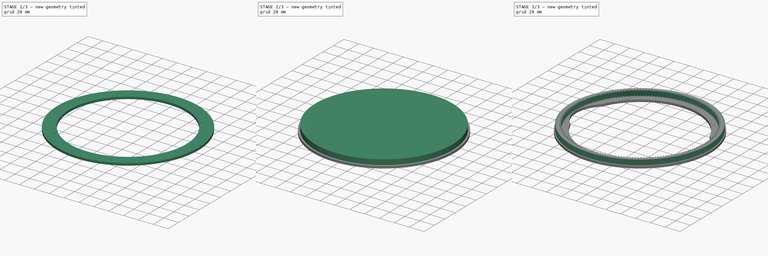
[diagram: build sequence overview — one tinted view per stage of 3, left to right]
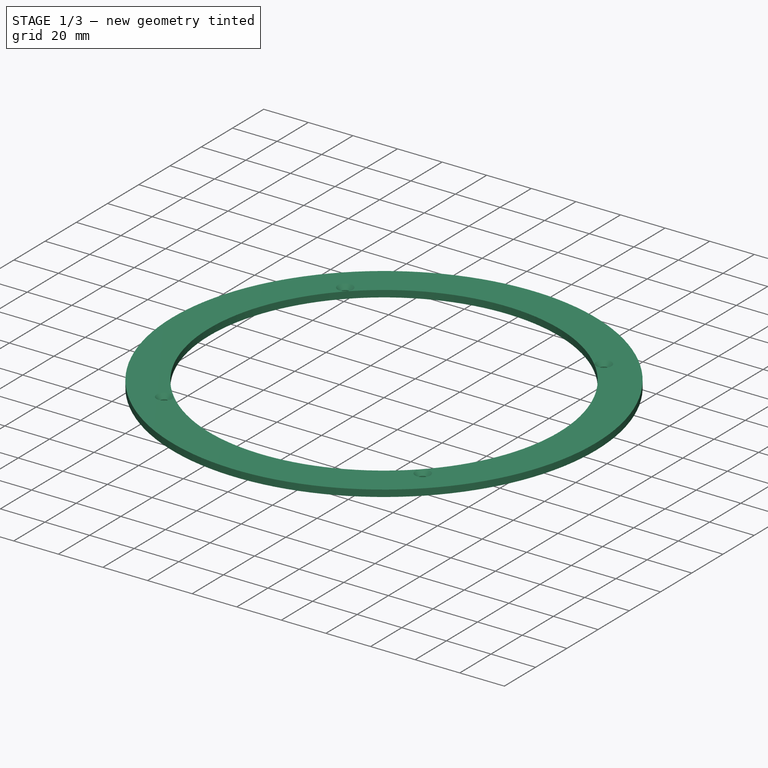
[diagram: stage 1 of 3 — iso view after this stage's code; geometry added in this stage tinted green]
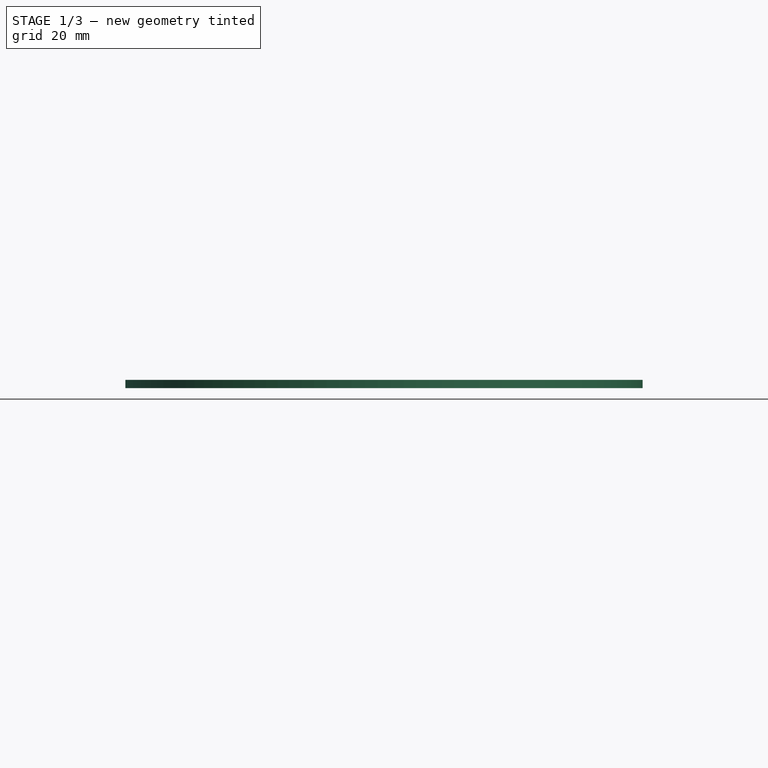
[diagram: stage 1 of 3 — front view after this stage's code; geometry added in this stage tinted green]
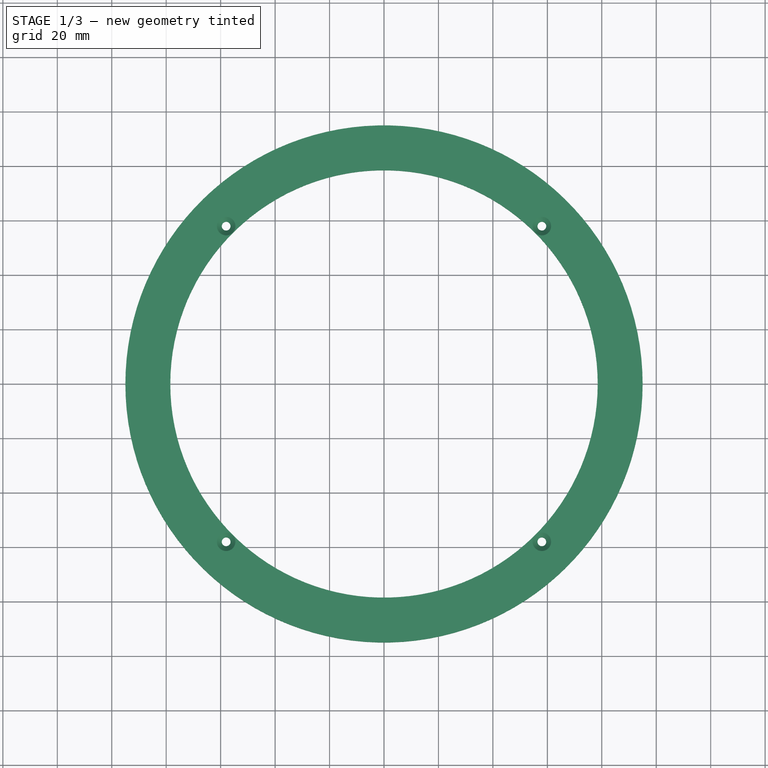
[diagram: stage 1 of 3 — top view after this stage's code; geometry added in this stage tinted green]
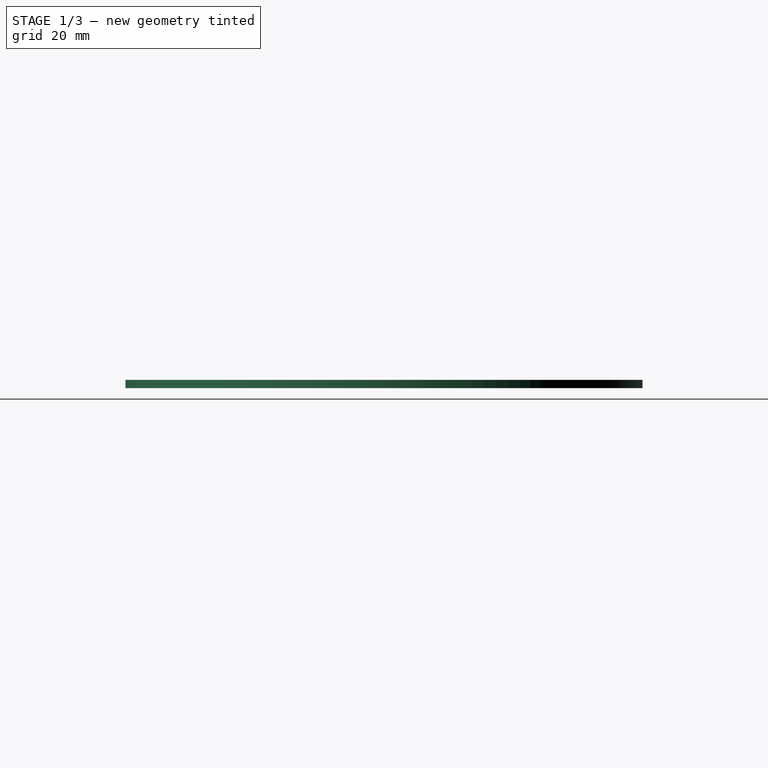
[diagram: stage 1 of 3 — right view after this stage's code; geometry added in this stage tinted green]
FCSTD DOCUMENT  (FreeCAD 0.19R24276 (Git))
Label: Out_gear_t176_w7_d185_GT2_t295_osnovanie_v2
License: All rights reserved
LicenseURL: http://en.wikipedia.org/wiki/All_rights_reserved
objects: App::FeaturePython×4, Sketcher::SketchObject×3, PartDesign::Body×2, PartDesign::Pocket×2, PartDesign::FeaturePython×1, Part::Cylinder×1, Part::Cut×1, Part::FeaturePython×1, PartDesign::Pad×1, PartDesign::Chamfer×1
note: 17 computed .brp shape members not serialized (recipe doc carries the construction recipe); baked Part::Feature solids carry a one-line shape summary decoded from their .brp

FEATURE [App::FeaturePython] planeCoincident_001  label="planeCoincident_001__GT2_t295_d185_001"  # a2plus constraint (typed FeaturePython)
  Object1 = Cut
  Object2 = b_GT2_t295_d185_001_
  ParentTreeObject = -> Cut
  SubElement1 = Face2
  SubElement2 = Face5
  Suppressed = false
  Type = plane
  directionConstraint = 0
  offset = 0
FEATURE [App::FeaturePython] planeCoincident_001_mirror  label="planeCoincident_001__Cut"  # a2plus constraint (typed FeaturePython)
  Object1 = Cut
  Object2 = b_GT2_t295_d185_001_
  ParentTreeObject = -> b_GT2_t295_d185_001_
  SubElement1 = Face2
  SubElement2 = Face5
  Suppressed = false
  Type = plane
  directionConstraint = 0
  offset = 0
FEATURE [App::FeaturePython] axisCoincident_001  label="axisCoincident_001__Cut"  # a2plus constraint (typed FeaturePython)
  Object1 = b_GT2_t295_d185_001_
  Object2 = Cut
  ParentTreeObject = -> b_GT2_t295_d185_001_
  SubElement1 = Face1773
  SubElement2 = Face1
  Suppressed = false
  Type = axial
  directionConstraint = 1
  lockRotation = false
FEATURE [App::FeaturePython] axisCoincident_001_mirror  label="axisCoincident_001__GT2_t295_d185_001"  # a2plus constraint (typed FeaturePython)
  Object1 = b_GT2_t295_d185_001_
  Object2 = Cut
  ParentTreeObject = -> Cut
  SubElement1 = Face1773
  SubElement2 = Face1
  Suppressed = false
  Type = axial
  directionConstraint = 1
  lockRotation = false
FEATURE [Sketcher::SketchObject] Sketch
  FullyConstrained = true
  MapMode = 5
  Support = -> [XY_Plane001]
  sketch-geometry (2):
    g0: Circle CenterX=0 CenterY=0 CenterZ=0 NormalX=0 NormalY=0 NormalZ=1 AngleXU=0 Radius=95
    g1: Circle CenterX=0 CenterY=0 CenterZ=0 NormalX=0 NormalY=0 NormalZ=1 AngleXU=0 Radius=78.5
  constraints (4):
    c: Coincident(g0,g-1)
    c: Diameter(g0) = 190
    c: Coincident(g1,g0)
    c: Diameter(g1) = 157
FEATURE [PartDesign::Pad] Pad
  Direction = (1,1,1)
  Length = 3
  Length2 = 100
  Profile = -> Sketch
  Reversed = true
  Type = 0
FEATURE [Sketcher::SketchObject] Sketch001
  FullyConstrained = true
  MapMode = 5
  Placement = pos=(0,0,-3) rot=(1,0,0;3.14159rad)
  Support = -> [Pad]
  sketch-geometry (13):
    g0: Circle CenterX=0 CenterY=82 CenterZ=0 NormalX=0 NormalY=0 NormalZ=1 AngleXU=0 Radius=1.6
    g1: Circle CenterX=82 CenterY=0 CenterZ=0 NormalX=0 NormalY=0 NormalZ=1 AngleXU=0 Radius=1.6
    g2: Circle CenterX=-82 CenterY=0 CenterZ=0 NormalX=0 NormalY=0 NormalZ=1 AngleXU=0 Radius=1.6
    g3: Circle CenterX=0 CenterY=-82 CenterZ=0 NormalX=0 NormalY=0 NormalZ=1 AngleXU=0 Radius=1.6
    g4: Circle CenterX=0 CenterY=0 CenterZ=0 NormalX=0 NormalY=0 NormalZ=1 AngleXU=0 Radius=82
    g5: LineSegment StartX=0 StartY=0 StartZ=0 EndX=57.9828 EndY=57.9828 EndZ=0
    g6: LineSegment StartX=0 StartY=0 StartZ=0 EndX=-57.9828 EndY=57.9828 EndZ=0
    g7: LineSegment StartX=0 StartY=0 StartZ=0 EndX=-57.9828 EndY=-57.9828 EndZ=0
    g8: LineSegment StartX=0 StartY=0 StartZ=0 EndX=57.9828 EndY=-57.9828 EndZ=0
    g9: Circle CenterX=57.9828 CenterY=57.9828 CenterZ=0 NormalX=0 NormalY=0 NormalZ=1 AngleXU=0 Radius=1.6
    g10: Circle CenterX=-57.9828 CenterY=57.9828 CenterZ=0 NormalX=0 NormalY=0 NormalZ=1 AngleXU=0 Radius=1.6
    g11: Circle CenterX=-57.9828 CenterY=-57.9828 CenterZ=0 NormalX=0 NormalY=0 NormalZ=1 AngleXU=0 Radius=1.6
    g12: Circle CenterX=57.9828 CenterY=-57.9828 CenterZ=0 NormalX=0 NormalY=0 NormalZ=1 AngleXU=0 Radius=1.6
  constraints (34):
    c: PointOnObject(g0,g-2)
    c: Diameter(g0) = 3.2
    c: DistanceY(g-1,g0) = 82
    c: PointOnObject(g1,g-1)
    c: Equal(g0,g1)
    c: DistanceX(g-1,g1) = 82
    c: PointOnObject(g2,g-1)
    c: Equal(g2,g0)
    c: DistanceX(g2,g-1) = 82
    c: PointOnObject(g3,g-2)
    c: Equal(g0,g3)
    c: DistanceY(g3,g-1) = 82
    c: Coincident(g4,g-1)
    c: Radius(g4) = 82
    c: Coincident(g5,g4)
    c: Coincident(g6,g4)
    c: Coincident(g7,g4)
    c: Coincident(g8,g4)
    c: Parallel(g6,g8)
    c: Parallel(g5,g7)
    c: Angle(g-1,g5) = 0.785398
    c: Angle(g5,g6) = 1.5708
    c: PointOnObject(g5,g4)
    c: PointOnObject(g8,g4)
    c: PointOnObject(g7,g4)
    c: PointOnObject(g6,g4)
    c: Coincident(g9,g5)
    c: Coincident(g10,g6)
    c: Coincident(g11,g7)
    c: Coincident(g12,g8)
    c: Diameter(g9) = 3.2
    c: Equal(g9,g10)
    c: Equal(g9,g11)
    c: Equal(g9,g12)
FEATURE [PartDesign::Pocket] Pocket
  BaseFeature = -> Pad
  Length = 5
  Length2 = 100
  Profile = -> Sketch001
  Type = 1
FEATURE [PartDesign::Chamfer] Chamfer
  Angle = 45
  Base = -> Pocket [Edge6,Vertex3,Edge4,Edge8,Edge5]
  BaseFeature = -> Pocket
  ChamferType = 0
  FlipDirection = false
  Size = 1.8
  Size2 = 1
  SupportTransform = false
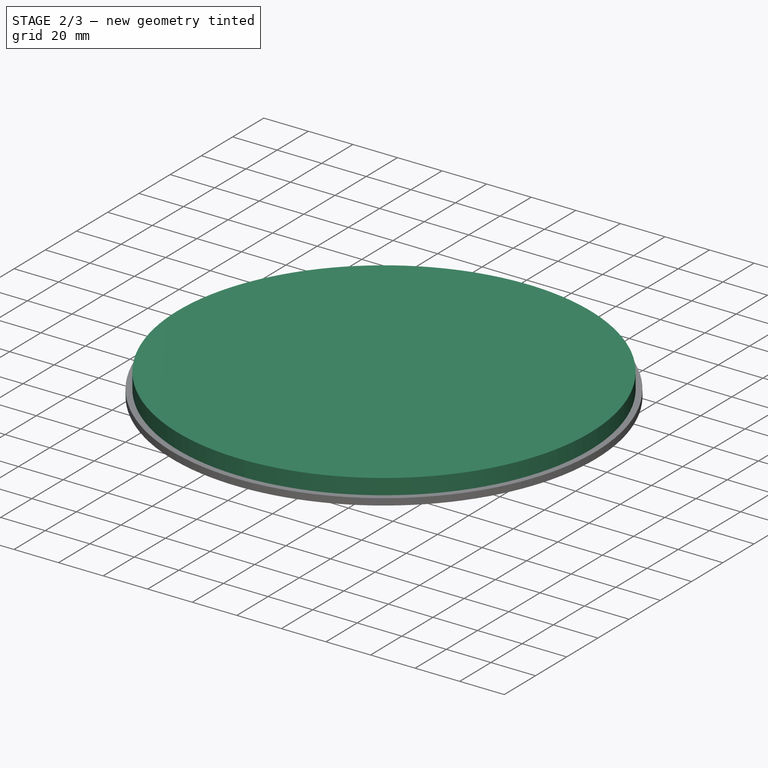
[diagram: stage 2 of 3 — iso view after this stage's code; geometry added in this stage tinted green]
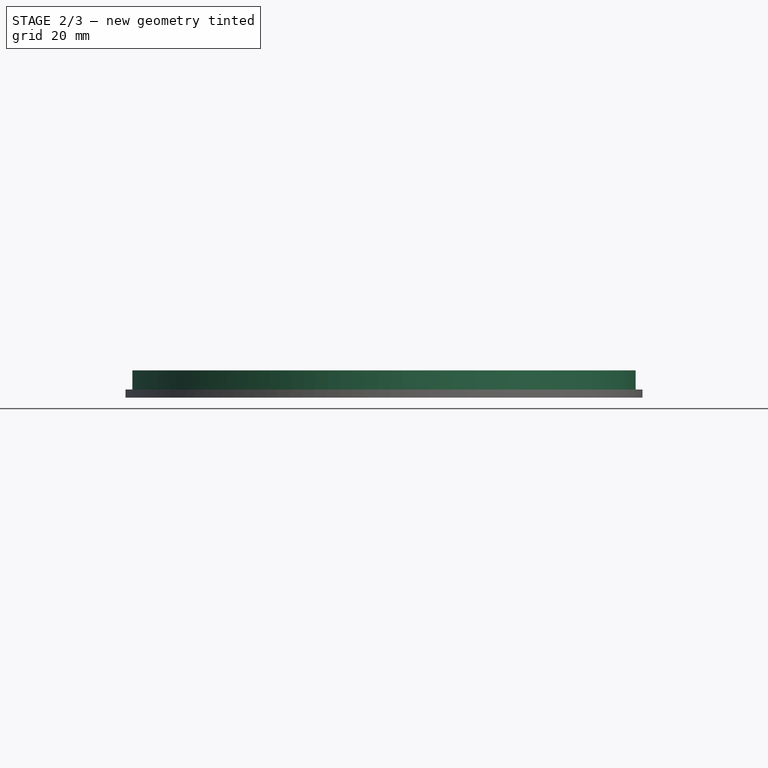
[diagram: stage 2 of 3 — front view after this stage's code; geometry added in this stage tinted green]
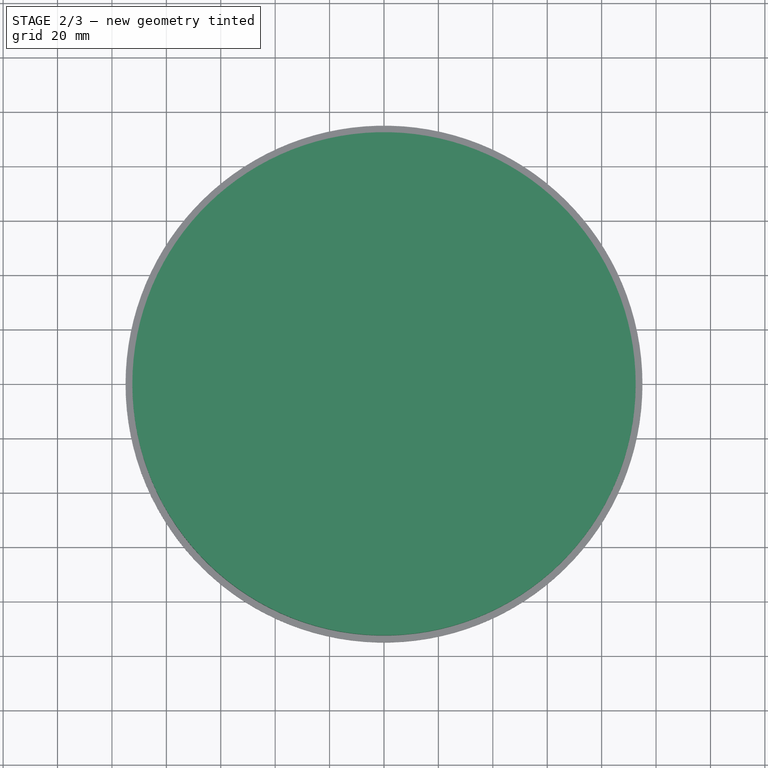
[diagram: stage 2 of 3 — top view after this stage's code; geometry added in this stage tinted green]
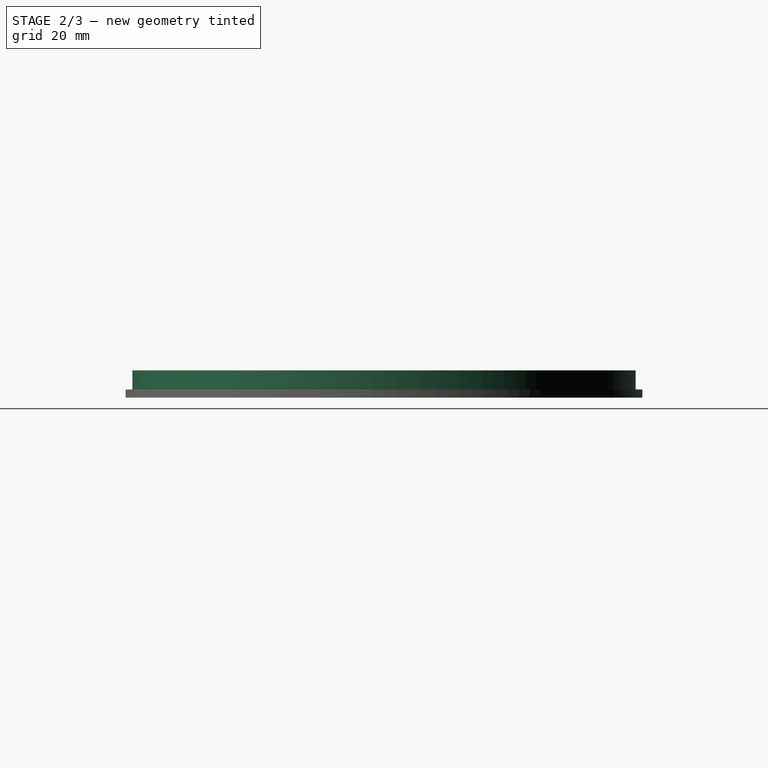
[diagram: stage 2 of 3 — right view after this stage's code; geometry added in this stage tinted green]
FEATURE [PartDesign::Body] Body
  Group = -> [involutegear001]
  Origin = -> Origin
  Tip = -> involutegear001
FEATURE [Part::Cylinder] Cylinder  label="Цилиндр"
  Angle = 360
  AttacherType = Attacher::AttachEngine3D
  Height = 7
  Radius = 92.5
FEATURE [Sketcher::SketchObject] Sketch002
  FullyConstrained = true
  MapMode = 5
  Support = -> [XY_Plane001]
  sketch-geometry (2):
    g0: Circle CenterX=-45 CenterY=0 CenterZ=0 NormalX=0 NormalY=0 NormalZ=1 AngleXU=0 Radius=41
    g1: Circle CenterX=45 CenterY=0 CenterZ=0 NormalX=0 NormalY=0 NormalZ=1 AngleXU=0 Radius=41
  constraints (6):
    c: PointOnObject(g0,g-1)
    c: PointOnObject(g1,g-1)
    c: Diameter(g0) = 82
    c: DistanceX(g0,g-1) = 45
    c: Equal(g0,g1)
    c: DistanceX(g-1,g1) = 45
FEATURE [PartDesign::Pocket] Pocket001
  BaseFeature = -> Chamfer
  Length = 5
  Length2 = 100
  Profile = -> Sketch002
  Type = 1
FEATURE [PartDesign::Body] Body001
  Group = -> [Sketch,Pad,Sketch001,Pocket,Chamfer,Sketch002,Pocket001]
  Origin = -> Origin001
  Tip = -> Pocket001
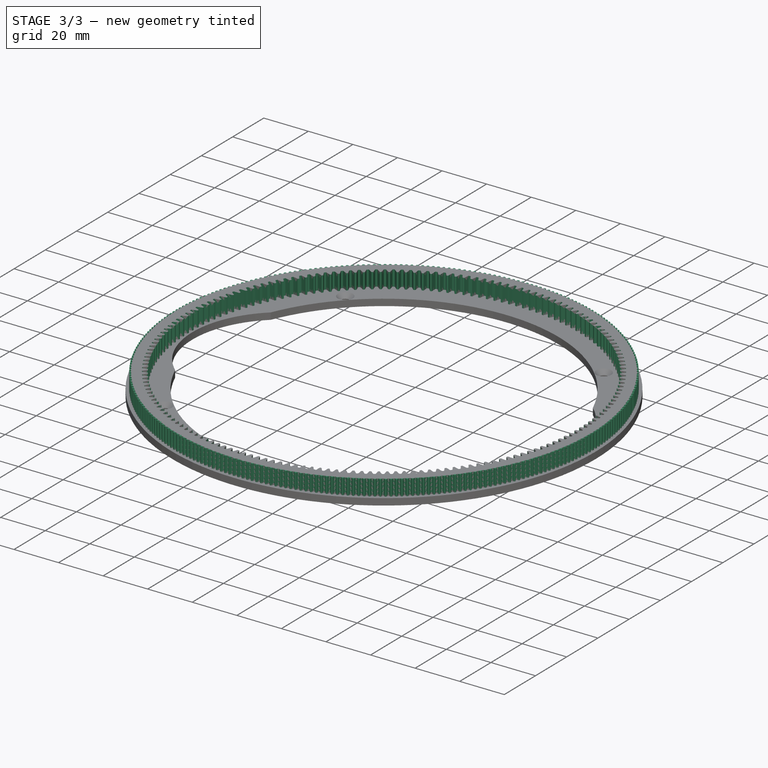
[diagram: stage 3 of 3 — iso view after this stage's code; geometry added in this stage tinted green]
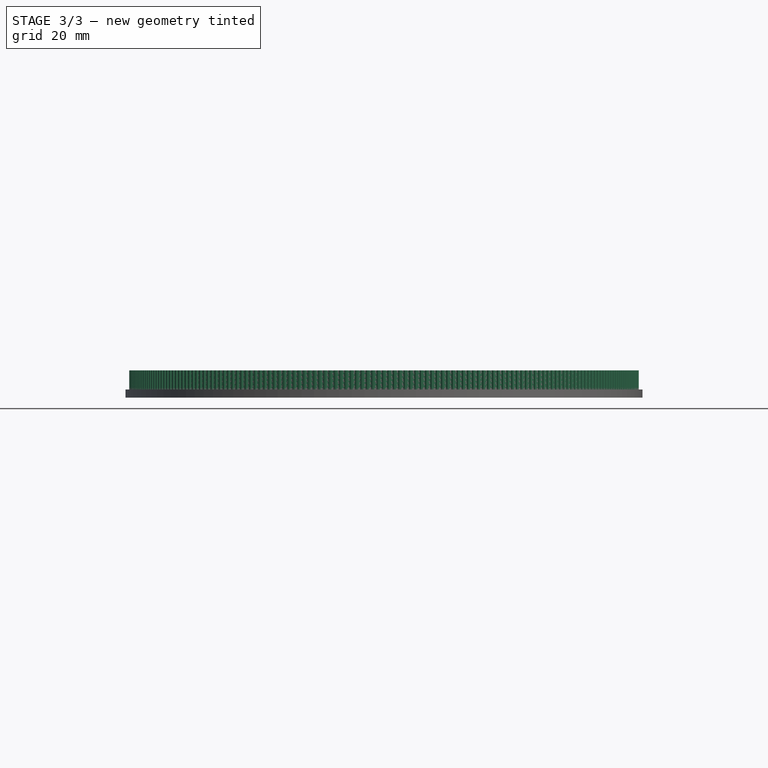
[diagram: stage 3 of 3 — front view after this stage's code; geometry added in this stage tinted green]
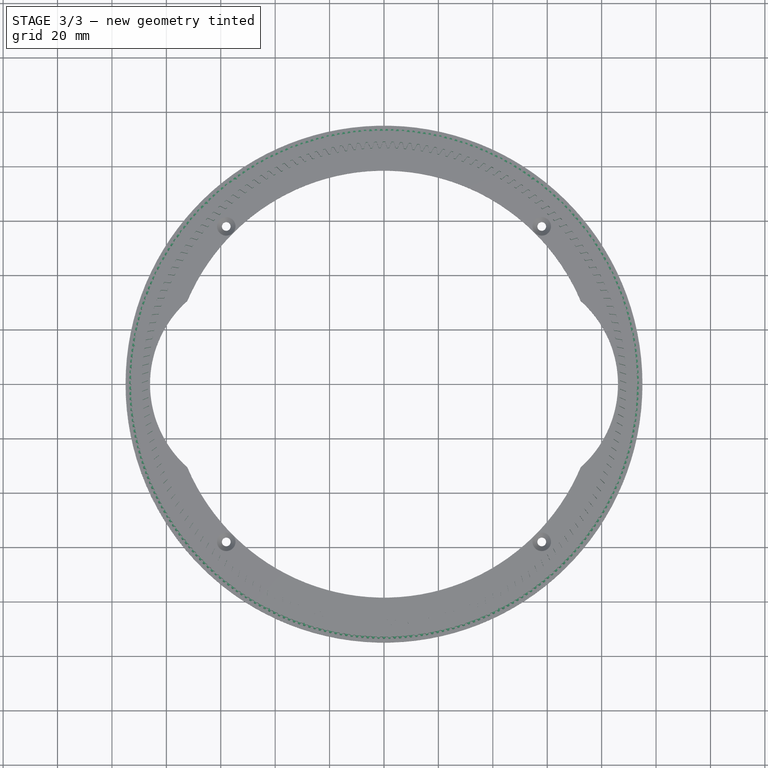
[diagram: stage 3 of 3 — top view after this stage's code; geometry added in this stage tinted green]
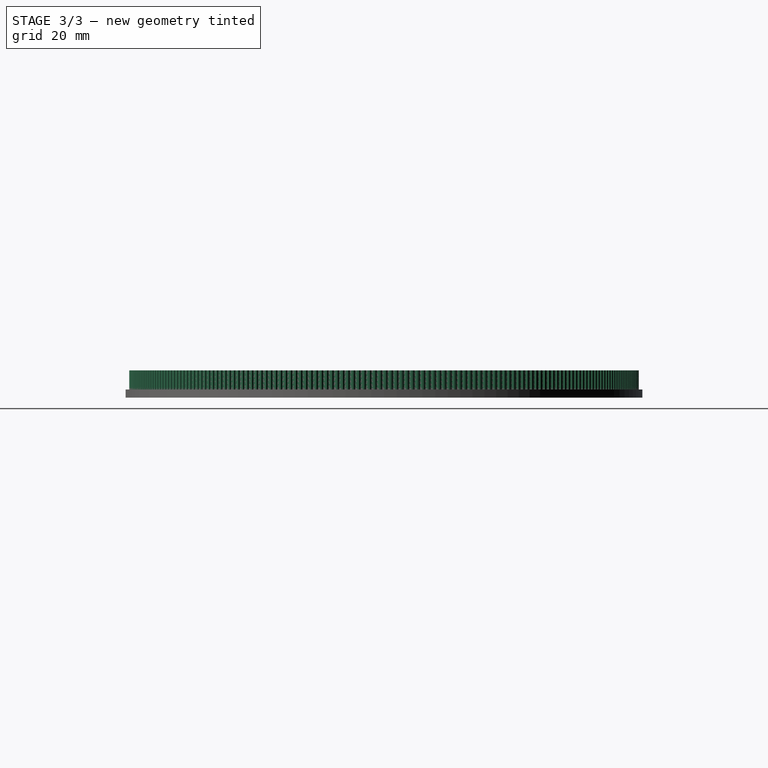
[diagram: stage 3 of 3 — right view after this stage's code; geometry added in this stage tinted green]
FEATURE [PartDesign::FeaturePython] involutegear001  # WARN: FeaturePython — macro-defined, semantics opaque (R4)
  AttacherType = Attacher::AttachEngine3D
  backlash = 0
  beta = 0
  clearance = 0.25
  da = 178
  df = 173.5
  double_helix = false
  dw = 176
  head = 0
  height = 7
  module = 1
  numpoints = 6
  pressure_angle = 20
  properties_from_tool = false
  reversed_backlash = false
  shift = 0
  simple = false
  teeth = 176
  transverse_pitch = 3.14159
  undercut = false
  version = 0.0.3
FEATURE [Part::Cut] Cut
  Base = -> Cylinder
  Placement = pos=(-5.56397e-06,-3.36712e-06,-8.34e-13) rot=(0,0,1;0rad)
  Tool = -> Body
FEATURE [Part::FeaturePython] b_GT2_t295_d185_001_  label="GT2_t295_d185_001"  # a2plus imported part (geometry in sourceFile) (typed FeaturePython)
  a2p_Version = V0.1
  fixedPosition = true
  objectType = a2pPart
  sourceFile = .\GT2_t295_d185.FCStd
  subassemblyImport = false
  timeLastImport = 1.6473e+09
  updateColors = true
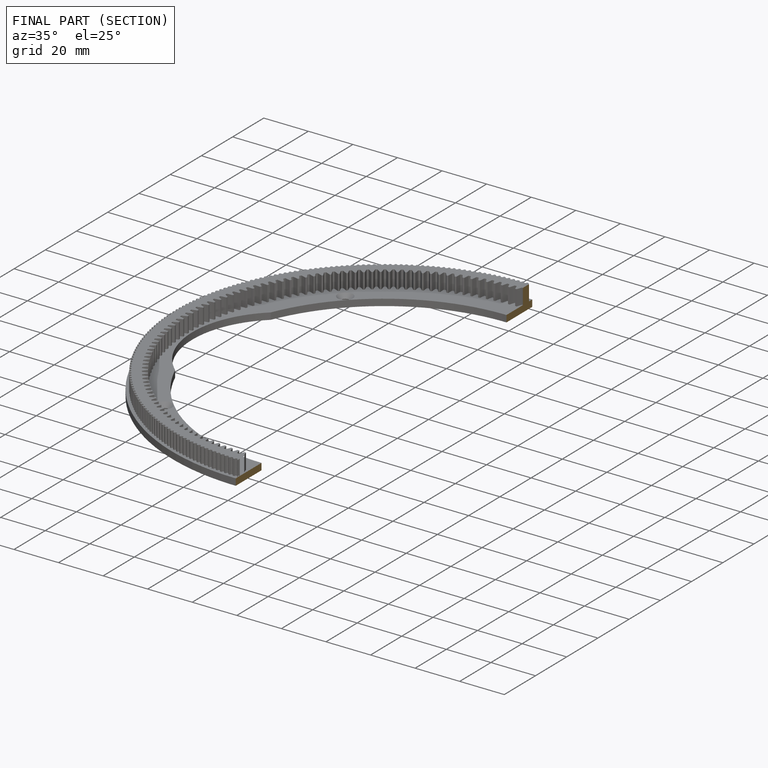
[diagram: finished part — half-section view (interior)]
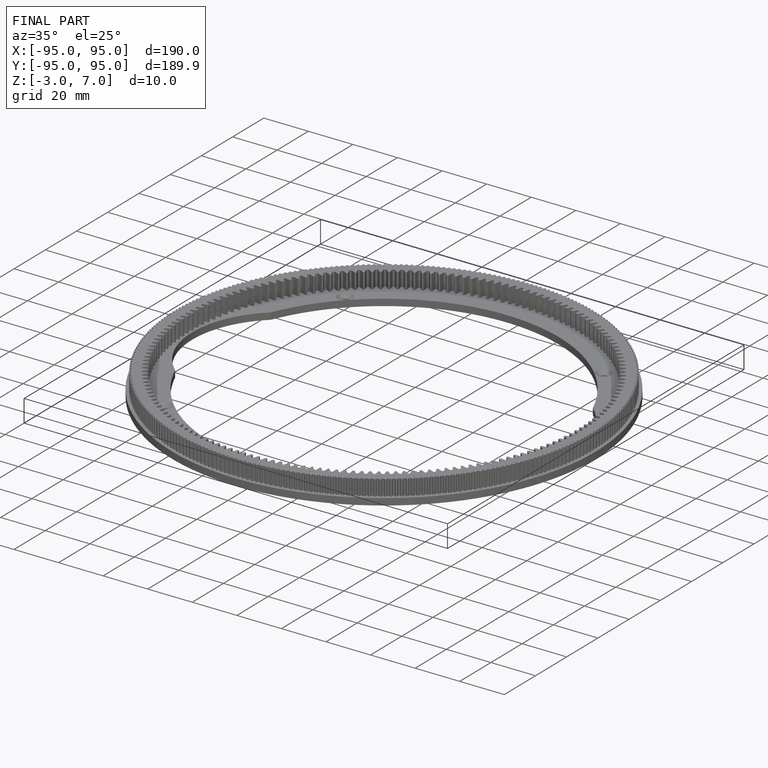
[diagram: finished part — iso view with bounding-box wireframe]
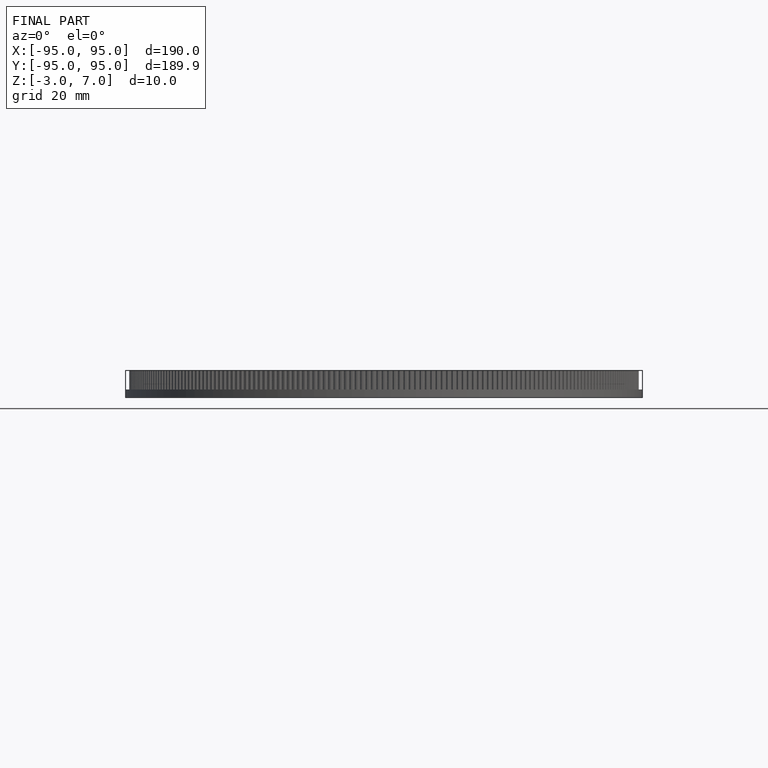
[diagram: finished part — front view with bounding-box wireframe]
